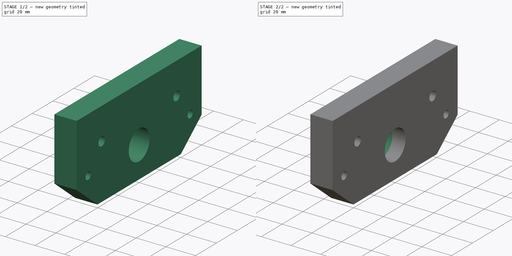
[diagram: build sequence overview — one tinted view per stage of 2, left to right]
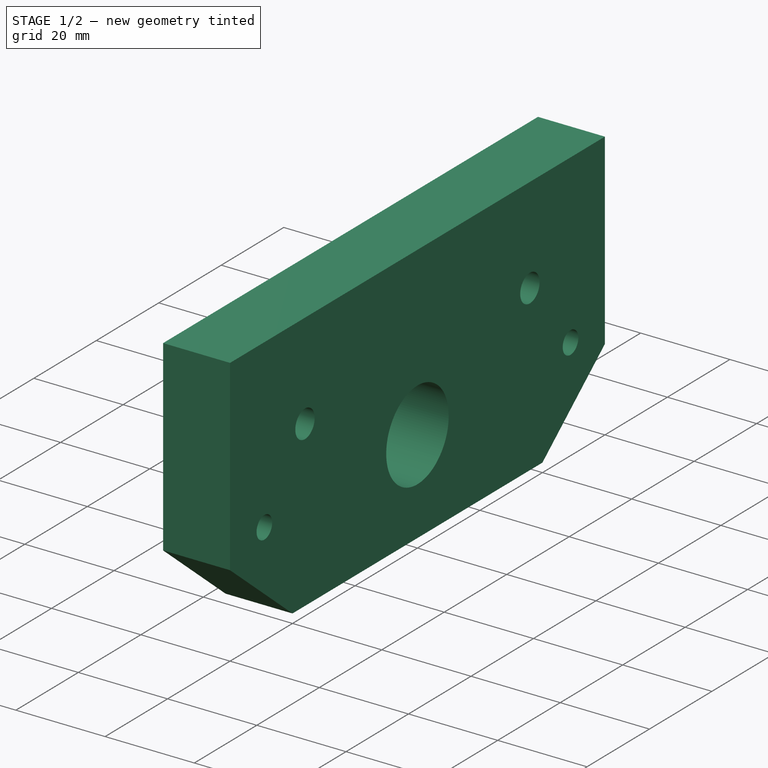
[diagram: stage 1 of 2 — iso view after this stage's code; geometry added in this stage tinted green]
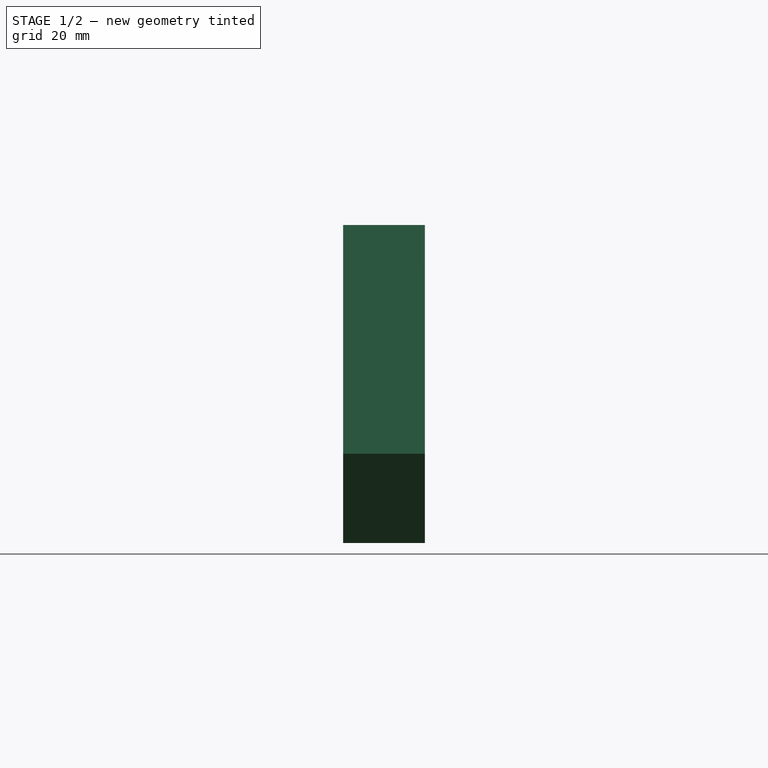
[diagram: stage 1 of 2 — front view after this stage's code; geometry added in this stage tinted green]
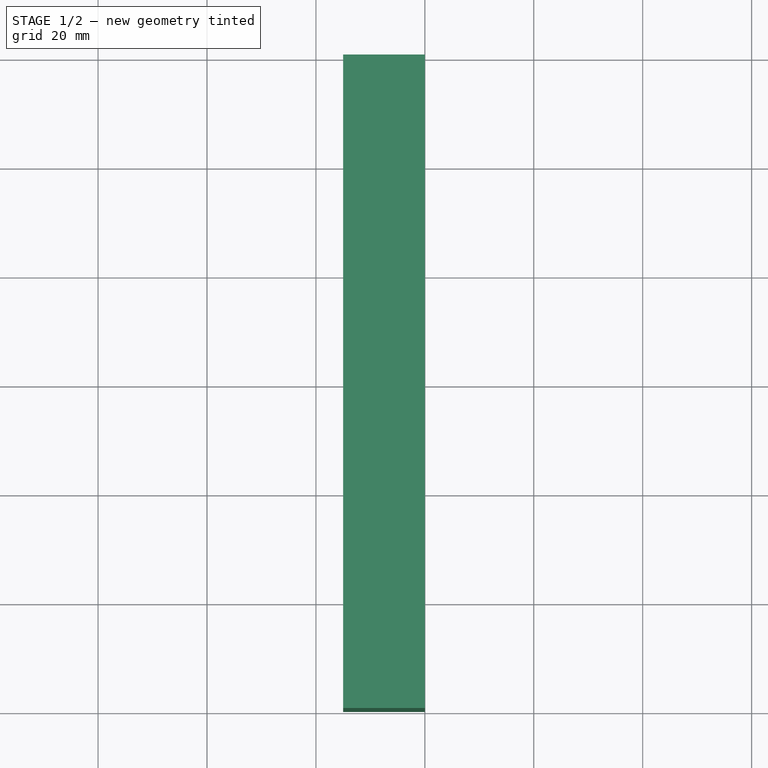
[diagram: stage 1 of 2 — top view after this stage's code; geometry added in this stage tinted green]
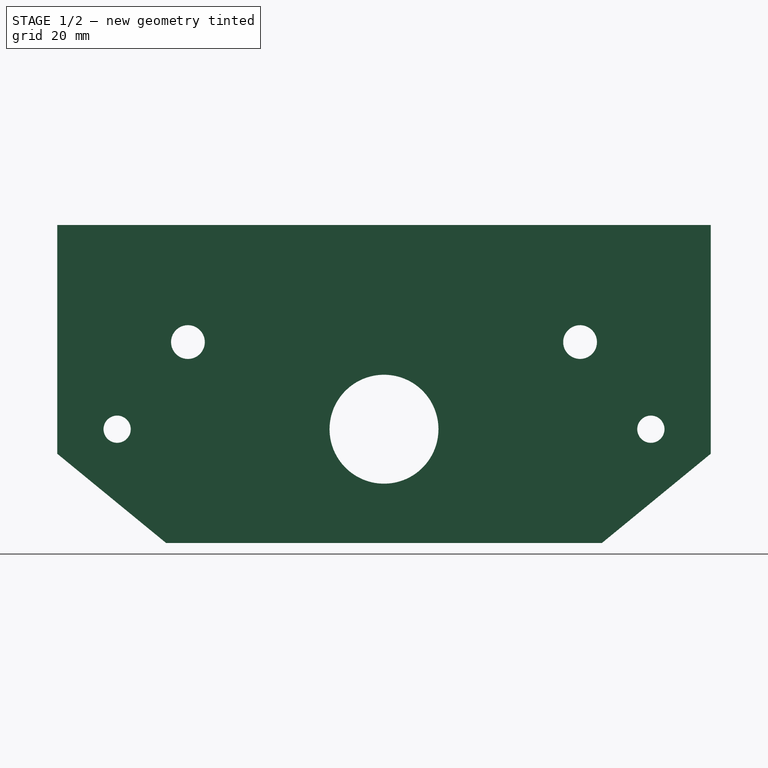
[diagram: stage 1 of 2 — right view after this stage's code; geometry added in this stage tinted green]
FCSTD DOCUMENT  (FreeCAD 0.16R5536 (Git))
Label: Left-Cover-150
License: CreativeCommons Attribution-ShareAlike
LicenseURL: http://creativecommons.org/licenses/by-sa/4.0/
objects: Sketcher::SketchObject×3, PartDesign::Pocket×2, PartDesign::Pad×1
note: 9 computed .brp shape members not serialized (recipe doc carries the construction recipe); baked Part::Feature solids carry a one-line shape summary decoded from their .brp

FEATURE [Sketcher::SketchObject] Sketch
  Placement = pos=(0,0,0) rot=(0.57735,-0.57735,-0.57735;2.0944rad)
  sketch-geometry (11):
    g0: LineSegment StartX=-60 StartY=0 StartZ=0 EndX=60 EndY=0 EndZ=0
    g1: LineSegment StartX=60 StartY=0 StartZ=0 EndX=60 EndY=-42 EndZ=0
    g2: LineSegment StartX=60 StartY=-42 StartZ=0 EndX=40 EndY=-58.4 EndZ=0
    g3: LineSegment StartX=40 StartY=-58.4 StartZ=0 EndX=-40 EndY=-58.4 EndZ=0
    g4: LineSegment StartX=-40 StartY=-58.4 StartZ=0 EndX=-60 EndY=-42 EndZ=0
    g5: LineSegment StartX=-60 StartY=-42 StartZ=0 EndX=-60 EndY=0 EndZ=0
    g6: Circle CenterX=0 CenterY=-37.5 CenterZ=0 NormalX=0 NormalY=0 NormalZ=1 Radius=10
    g7: Circle CenterX=-36 CenterY=-21.5 CenterZ=0 NormalX=0 NormalY=0 NormalZ=1 Radius=3.1
    g8: Circle CenterX=36 CenterY=-21.5 CenterZ=0 NormalX=0 NormalY=0 NormalZ=1 Radius=3.1
    g9: Circle CenterX=49 CenterY=-37.5 CenterZ=0 NormalX=0 NormalY=0 NormalZ=1 Radius=2.5
    g10: Circle CenterX=-49 CenterY=-37.5 CenterZ=0 NormalX=0 NormalY=0 NormalZ=1 Radius=2.5
  constraints (31):
    c: Coincident(g0,g1)
    c: Coincident(g1,g2)
    c: Coincident(g2,g3)
    c: Coincident(g3,g4)
    c: Coincident(g4,g5)
    c: Coincident(g5,g0)
    c: Horizontal(g0)
    c: Horizontal(g3)
    c: Symmetric(g3,g2,g-2)
    c: Symmetric(g0,g0,g-2)
    c: Vertical(g5)
    c: Vertical(g1)
    c: Equal(g5,g1)
    c: DistanceX(g0,g0) = 120
    c: DistanceY(g1,g0) = 42
    c: DistanceX(g3,g2) = 80
    c: PointOnObject(g6,g-2)
    c: DistanceY(g0,g6) = -37.5
    c: Radius(g6) = 10
    c: Equal(g7,g8)
    c: Radius(g7) = 3.1
    c: Symmetric(g7,g8,g-2)
    c: Symmetric(g10,g9,g-2)
    c: Equal(g10,g9)
    c: Radius(g10) = 2.5
    c: DistanceX(g10,g9) = 98
    c: DistanceX(g7,g8) = 72
    c: DistanceY(g7,g0) = 21.5
    c: DistanceY(g9,g0) = 37.5
    c: PointOnObject(g0,g-1)
    c: DistanceY(g-1,g2) = -58.4
FEATURE [PartDesign::Pad] Pad
  Length = 15
  Length2 = 100
  Placement = pos=(0,0,0) rot=(0.57735,-0.57735,-0.57735;2.0944rad)
  Sketch = -> Sketch
  Type = 0
FEATURE [Sketcher::SketchObject] Sketch001
  Placement = pos=(-15,0,0) rot=(0.57735,-0.57735,-0.57735;2.0944rad)
  Support = -> Pad [Face13]
  sketch-geometry (2):
    g0: Circle CenterX=-36 CenterY=-21.5 CenterZ=0 NormalX=0 NormalY=0 NormalZ=1 Radius=5.4
    g1: Circle CenterX=36 CenterY=-21.5 CenterZ=0 NormalX=0 NormalY=0 NormalZ=1 Radius=5.4
  constraints (5):
    c: Symmetric(g0,g1,g-2)
    c: Radius(g0) = 5.4
    c: Equal(g0,g1)
    c: DistanceX(g0,g1) = 72
    c: DistanceY(g-1,g1) = -21.5
FEATURE [PartDesign::Pocket] Pocket
  Length = 6.5
  Placement = pos=(0,0,0) rot=(0.57735,-0.57735,-0.57735;2.0944rad)
  Sketch = -> Sketch001
  Type = 0
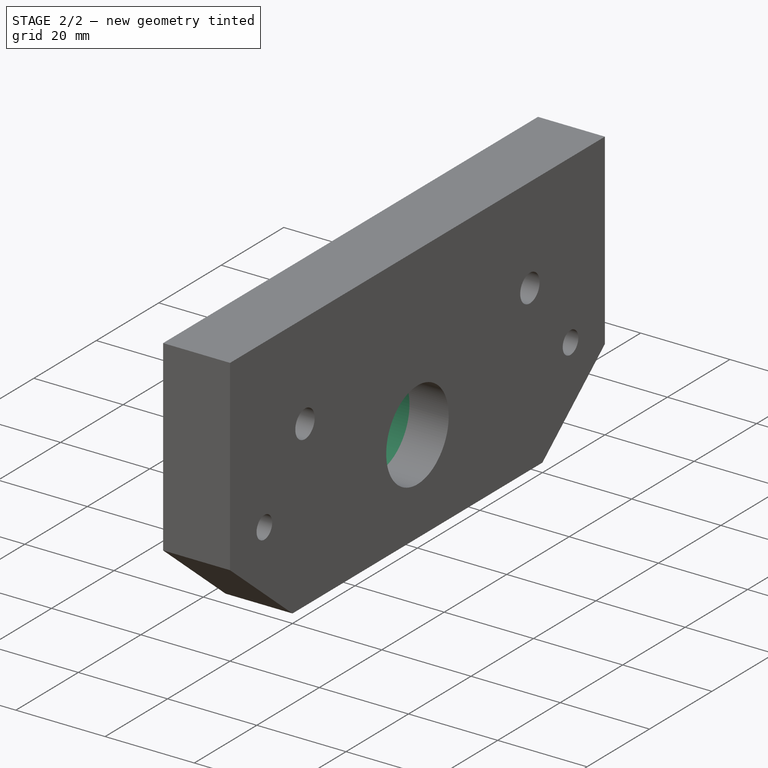
[diagram: stage 2 of 2 — iso view after this stage's code; geometry added in this stage tinted green]
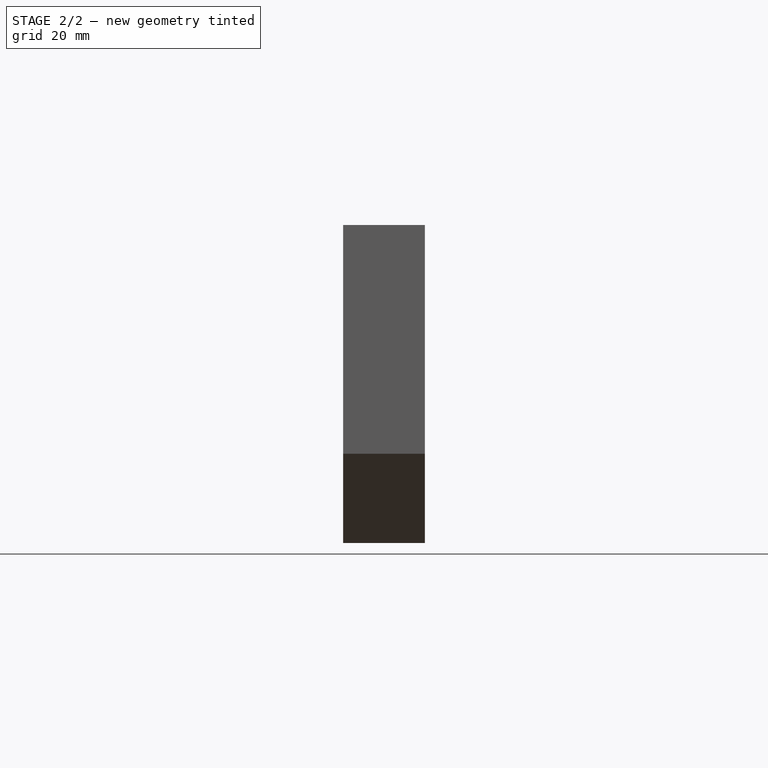
[diagram: stage 2 of 2 — front view after this stage's code; geometry added in this stage tinted green]
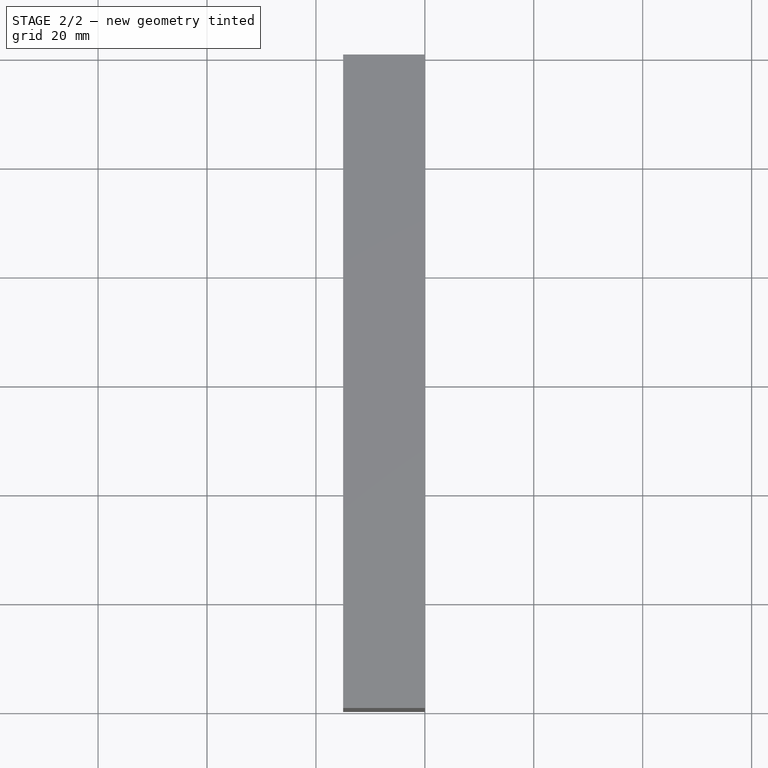
[diagram: stage 2 of 2 — top view after this stage's code; geometry added in this stage tinted green]
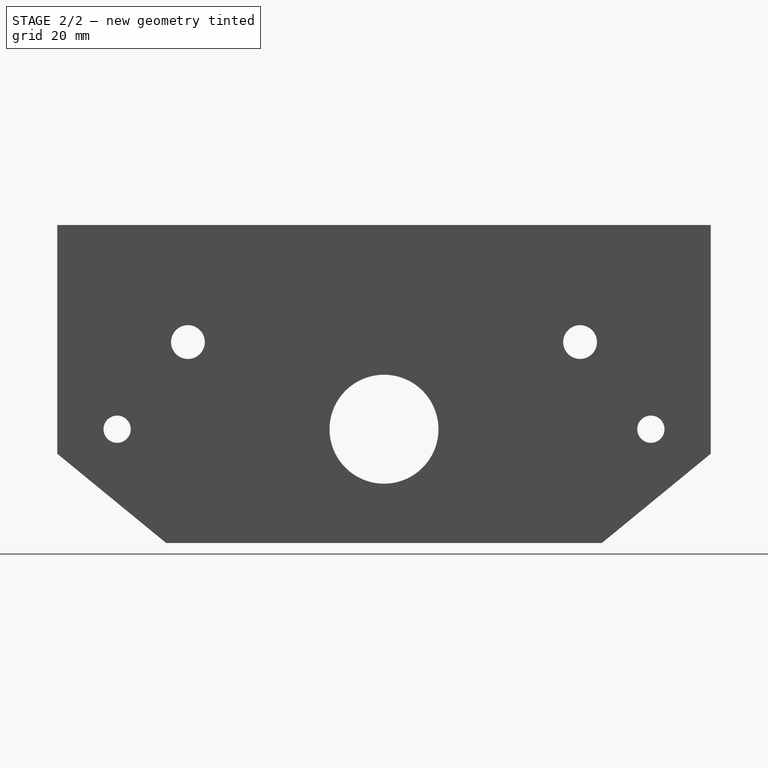
[diagram: stage 2 of 2 — right view after this stage's code; geometry added in this stage tinted green]
FEATURE [Sketcher::SketchObject] Sketch002
  Placement = pos=(-15,0,0) rot=(0.57735,-0.57735,-0.57735;2.0944rad)
  Support = -> Pocket [Face5]
  sketch-geometry (1):
    g0: Circle CenterX=0 CenterY=-37.5 CenterZ=0 NormalX=0 NormalY=0 NormalZ=1 Radius=12.4
  constraints (3):
    c: Radius(g0) = 12.4
    c: PointOnObject(g0,g-2)
    c: DistanceY(g-1,g0) = -37.5
FEATURE [PartDesign::Pocket] Pocket001
  Length = 6.2
  Placement = pos=(0,0,0) rot=(0.57735,-0.57735,-0.57735;2.0944rad)
  Sketch = -> Sketch002
  Type = 0
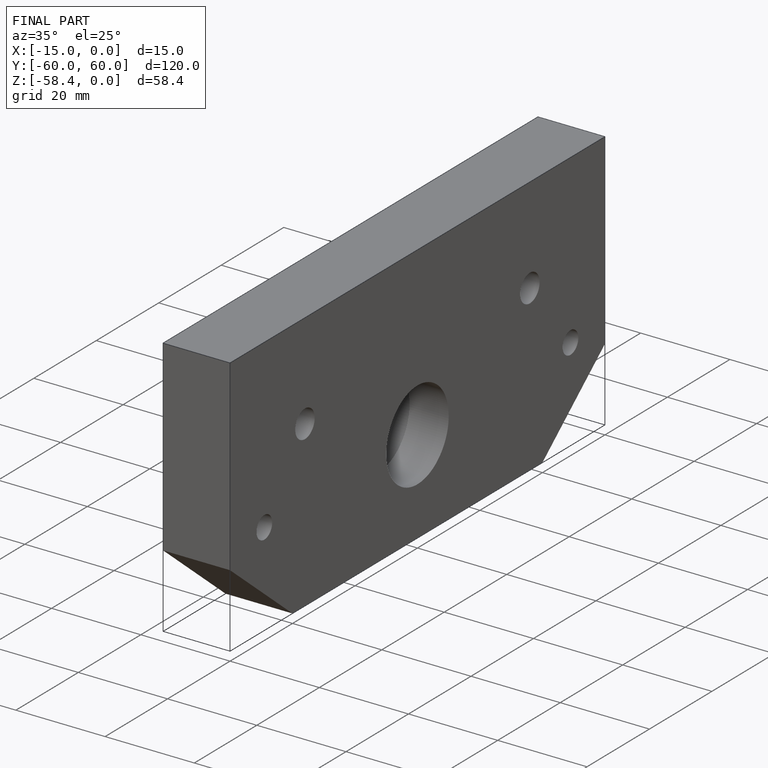
[diagram: finished part — iso view with bounding-box wireframe]
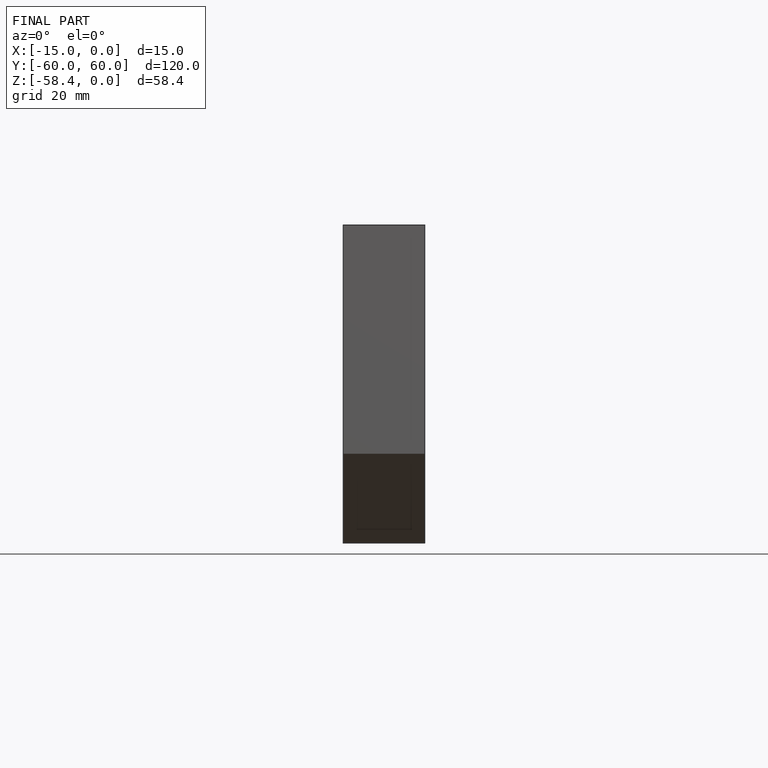
[diagram: finished part — front view with bounding-box wireframe]
